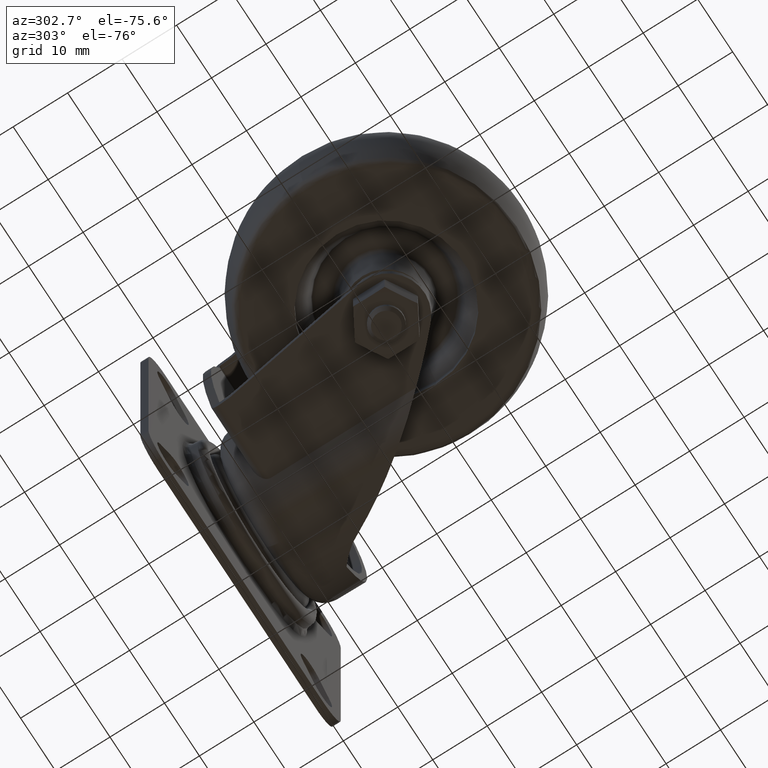
[diagram: clean part render]
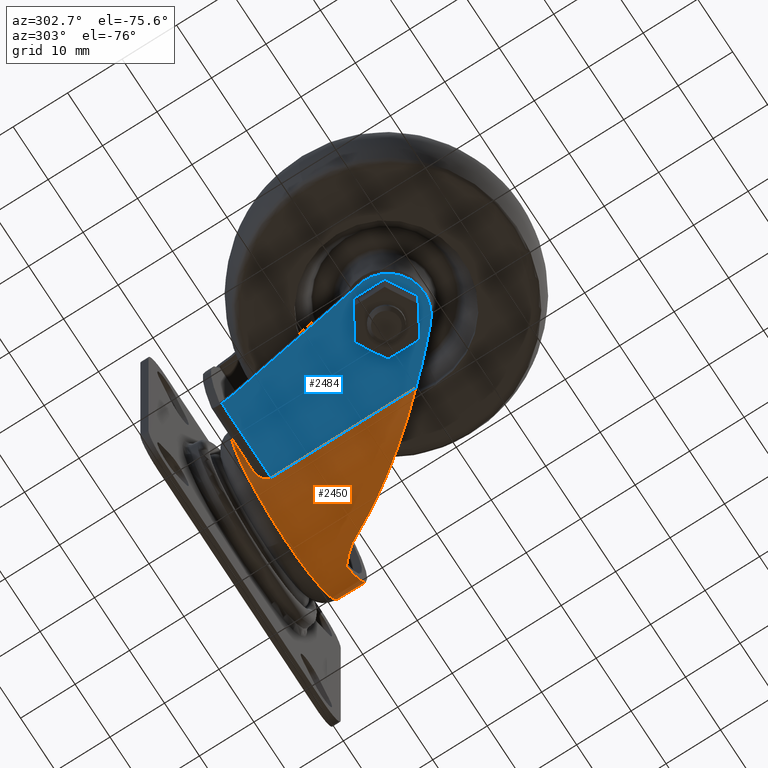
[diagram: same view with the hole feature highlighted: cylindrical wall and planar end face, labeled with their STEP entity ids]
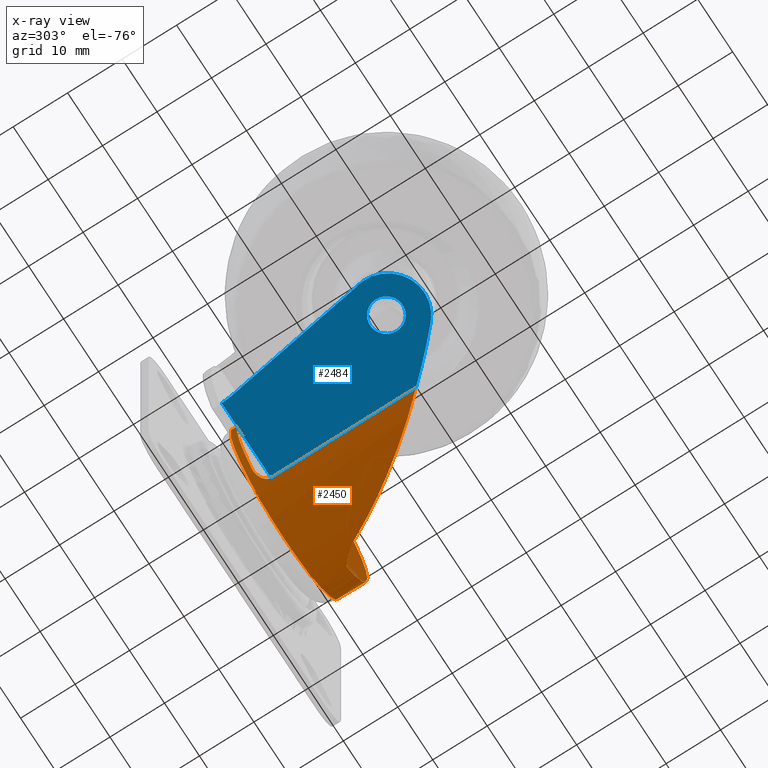
[diagram: x-ray of the same camera — body ghosted, the hole faces saturated]
A machine part, auxiliary view. The highlighted faces form one hole feature of diameter 31 mm: the cylindrical wall (entity #2450, orange) and its adjacent planar end face (entity #2484, blue) — they share a circular edge in the B-rep.
The next image is the same camera in x-ray (body ghosted, the hole faces saturated) — the bore reads through the body.
Wall:
#21=LINE('',#3867,#113);
#22=LINE('',#3901,#114);
#113=VECTOR('',#3032,26.6121173542962);
#114=VECTOR('',#3035,26.6121173542962);
#207=B_SPLINE_CURVE_WITH_KNOTS('',3,(#3840,#3841,#3842,#3843),
 .UNSPECIFIED.,.F.,.F.,(4,4),(0.,0.0047058748648858),.UNSPECIFIED.);
#208=B_SPLINE_CURVE_WITH_KNOTS('',3,(#3848,#3849,#3850,#3851,#3852,#3853,
#3854,#3855,#3856,#3857,#3858,#3859,#3860,#3861,#3862,#3863,#3864,#3865),
 .UNSPECIFIED.,.F.,.F.,(4,2,2,2,2,2,2,2,4),(4.06088354287779E-17,0.00668792817172207,
0.0133758563434441,0.0150478383863746,0.0167198204293051,0.0200637845151661,
0.0234077486010271,0.0250797306439576,0.0267517126868882),.UNSPECIFIED.);
#209=B_SPLINE_CURVE_WITH_KNOTS('',3,(#3869,#3870,#3871,#3872,#3873,#3874,
#3875,#3876,#3877,#3878,#3879,#3880,#3881,#3882),.UNSPECIFIED.,.F.,.F.,
(4,2,2,2,2,2,4),(0.,0.000502001827989007,0.00100400365597801,0.00150600548396702,
0.00200800731195603,0.00301201096793404,0.00401601462391206),
 .UNSPECIFIED.);
#210=B_SPLINE_CURVE_WITH_KNOTS('',3,(#3886,#3887,#3888,#3889,#3890,#3891,
#3892,#3893,#3894,#3895,#3896,#3897,#3898,#3899),.UNSPECIFIED.,.F.,.F.,
(4,2,2,2,2,2,4),(0.,0.000995283445160281,0.00149292516774042,0.00199056689032057,
0.00298585033548085,0.00348349205806099,0.00398113378064114),
 .UNSPECIFIED.);
#211=B_SPLINE_CURVE_WITH_KNOTS('',3,(#3903,#3904,#3905,#3906,#3907,#3908,
#3909,#3910,#3911,#3912,#3913,#3914,#3915,#3916,#3917,#3918),
 .UNSPECIFIED.,.F.,.F.,(4,2,2,2,2,2,2,4),(0.0599339497965216,0.0632746724651554,
0.0649450337994723,0.0666153951337892,0.0732968404710568,0.0766375631396906,
0.0799782858083244,0.086659731145592),.UNSPECIFIED.);
#212=B_SPLINE_CURVE_WITH_KNOTS('',3,(#3919,#3920,#3921,#3922),
 .UNSPECIFIED.,.F.,.F.,(4,4),(0.,0.00470587486488576),.UNSPECIFIED.);
#345=CYLINDRICAL_SURFACE('',#2651,15.5);
#402=FACE_BOUND('',#690,.T.);
#498=FACE_OUTER_BOUND('',#689,.T.);
#689=EDGE_LOOP('',(#1647,#1648,#1649,#1650,#1651,#1652,#1653,#1654,#1655,
#1656));
#690=EDGE_LOOP('',(#1657));
#933=CIRCLE('',#2652,15.5);
#934=CIRCLE('',#2653,15.5);
#935=CIRCLE('',#2654,15.5);
#1088=VERTEX_POINT('',#3836);
#1089=VERTEX_POINT('',#3838);
#1090=VERTEX_POINT('',#3845);
#1091=VERTEX_POINT('',#3847);
#1092=VERTEX_POINT('',#3866);
#1093=VERTEX_POINT('',#3868);
#1094=VERTEX_POINT('',#3883);
#1095=VERTEX_POINT('',#3885);
#1096=VERTEX_POINT('',#3900);
#1097=VERTEX_POINT('',#3902);
#1098=VERTEX_POINT('',#3923);
#1314=EDGE_CURVE('',#1089,#1088,#207,.T.);
#1315=EDGE_CURVE('',#1088,#1090,#933,.T.);
#1316=EDGE_CURVE('',#1089,#1091,#208,.T.);
#1317=EDGE_CURVE('',#1091,#1092,#21,.F.);
#1318=EDGE_CURVE('',#1092,#1093,#209,.T.);
#1319=EDGE_CURVE('',#1093,#1094,#934,.F.);
#1320=EDGE_CURVE('',#1094,#1095,#210,.T.);
#1321=EDGE_CURVE('',#1095,#1096,#22,.T.);
#1322=EDGE_CURVE('',#1096,#1097,#211,.T.);
#1323=EDGE_CURVE('',#1090,#1097,#212,.T.);
#1324=EDGE_CURVE('',#1098,#1098,#935,.T.);
#1647=ORIENTED_EDGE('',*,*,#1315,.F.);
#1648=ORIENTED_EDGE('',*,*,#1314,.F.);
#1649=ORIENTED_EDGE('',*,*,#1316,.T.);
#1650=ORIENTED_EDGE('',*,*,#1317,.T.);
#1651=ORIENTED_EDGE('',*,*,#1318,.T.);
#1652=ORIENTED_EDGE('',*,*,#1319,.T.);
#1653=ORIENTED_EDGE('',*,*,#1320,.T.);
#1654=ORIENTED_EDGE('',*,*,#1321,.T.);
#1655=ORIENTED_EDGE('',*,*,#1322,.T.);
#1656=ORIENTED_EDGE('',*,*,#1323,.F.);
#1657=ORIENTED_EDGE('',*,*,#1324,.T.);
#2450=ADVANCED_FACE('',(#498,#402),#345,.T.);
#2651=AXIS2_PLACEMENT_3D('',#3844,#3028,#3029);
#2652=AXIS2_PLACEMENT_3D('',#3846,#3030,#3031);
#2653=AXIS2_PLACEMENT_3D('',#3884,#3033,#3034);
#2654=AXIS2_PLACEMENT_3D('',#3924,#3036,#3037);
#3028=DIRECTION('center_axis',(0.,1.,0.));
#3029=DIRECTION('ref_axis',(0.,0.,-1.));
#3030=DIRECTION('center_axis',(0.,-1.,0.));
#3031=DIRECTION('ref_axis',(0.,0.,-1.));
#3032=DIRECTION('',(0.,-1.,0.));
#3033=DIRECTION('center_axis',(0.,-1.,0.));
#3034=DIRECTION('ref_axis',(0.,0.,-1.));
#3035=DIRECTION('',(0.,-1.,0.));
#3036=DIRECTION('center_axis',(0.,-1.,0.));
#3037=DIRECTION('ref_axis',(0.,0.,-1.));
#3836=CARTESIAN_POINT('',(30.56,26.93,-12.2006721126338));
#3838=CARTESIAN_POINT('',(27.5044218475587,23.8775764355235,-14.0692038306722));
#3840=CARTESIAN_POINT('Ctrl Pts',(27.5044218475587,23.8775764355235,-14.0692038306722));
#3841=CARTESIAN_POINT('Ctrl Pts',(28.4421015802834,25.0918843042083,-13.6356992334717));
#3842=CARTESIAN_POINT('Ctrl Pts',(29.4857782495898,26.1022635791365,-13.0423929489218));
#3843=CARTESIAN_POINT('Ctrl Pts',(30.56,26.93,-12.2006721126338));
#3844=CARTESIAN_POINT('Origin',(21.,-7.88,0.));
#3845=CARTESIAN_POINT('',(30.56,26.93,12.2006721126338));
#3846=CARTESIAN_POINT('Origin',(21.,26.93,0.));
#3847=CARTESIAN_POINT('',(12.1859487180979,2.38788264570382,-12.75));
#3848=CARTESIAN_POINT('Ctrl Pts',(27.5044218475587,23.8775764355235,-14.0692038306722));
#3849=CARTESIAN_POINT('Ctrl Pts',(26.4463167884258,21.947040104299,-14.5583830156828));
#3850=CARTESIAN_POINT('Ctrl Pts',(25.3289463616979,20.0430564579234,-14.9317955011972));
#3851=CARTESIAN_POINT('Ctrl Pts',(22.9722924717508,16.2877741856345,-15.4210361486479));
#3852=CARTESIAN_POINT('Ctrl Pts',(21.7330754819465,14.4364993616966,-15.5375324018506));
#3853=CARTESIAN_POINT('Ctrl Pts',(20.1032727257452,12.1538317071486,-15.4774763687643));
#3854=CARTESIAN_POINT('Ctrl Pts',(19.7732596928651,11.6988628868151,-15.4550287002377));
#3855=CARTESIAN_POINT('Ctrl Pts',(19.1049485312746,10.7919835873236,-15.3873839179115));
#3856=CARTESIAN_POINT('Ctrl Pts',(18.7664229139934,10.3398102906236,-15.3420914893297));
#3857=CARTESIAN_POINT('Ctrl Pts',(17.747446596739,8.99982037847617,-15.1705454029617));
#3858=CARTESIAN_POINT('Ctrl Pts',(17.0607312277525,8.12460607723789,-15.0086215029268));
#3859=CARTESIAN_POINT('Ctrl Pts',(15.6757564244728,6.4115372112805,-14.5749438498603));
#3860=CARTESIAN_POINT('Ctrl Pts',(14.9774705306604,5.57366275489884,-14.3033515165273));
#3861=CARTESIAN_POINT('Ctrl Pts',(13.9247571282997,4.34652301432564,-13.7964712792821));
#3862=CARTESIAN_POINT('Ctrl Pts',(13.572076104086,3.94142950599372,-13.6102415273224));
#3863=CARTESIAN_POINT('Ctrl Pts',(12.8741841570744,3.15104741622148,-13.2054475396481));
#3864=CARTESIAN_POINT('Ctrl Pts',(12.5282112511824,2.76484177852378,-12.9866054524299));
#3865=CARTESIAN_POINT('Ctrl Pts',(12.1859487180979,2.38788264570383,-12.75));
#3866=CARTESIAN_POINT('',(12.1859487180979,29.,-12.75));
#3867=CARTESIAN_POINT('',(12.1859487180979,-7.88,-12.75));
#3868=CARTESIAN_POINT('',(9.83364428293636,31.,-10.75));
#3869=CARTESIAN_POINT('Ctrl Pts',(12.1859487180979,29.,-12.75));
#3870=CARTESIAN_POINT('Ctrl Pts',(12.1859487180979,29.1699515577834,-12.75));
#3871=CARTESIAN_POINT('Ctrl Pts',(12.1538960299611,29.3359188665561,-12.7279622104691));
#3872=CARTESIAN_POINT('Ctrl Pts',(12.0431208169783,29.6435959572648,-12.6502526765524));
#3873=CARTESIAN_POINT('Ctrl Pts',(11.9657261144416,29.7840851053939,-12.595397482303));
#3874=CARTESIAN_POINT('Ctrl Pts',(11.7875621548913,30.0376559461741,-12.4656781334389));
#3875=CARTESIAN_POINT('Ctrl Pts',(11.6882183436785,30.1493647343359,-12.3918721202516));
#3876=CARTESIAN_POINT('Ctrl Pts',(11.4764512595405,30.3515766687194,-12.2298729203441));
#3877=CARTESIAN_POINT('Ctrl Pts',(11.3638032672427,30.4417136092345,-12.1414665615398));
#3878=CARTESIAN_POINT('Ctrl Pts',(11.0218667951057,30.6781386943396,-11.8647734363094));
#3879=CARTESIAN_POINT('Ctrl Pts',(10.7833608348028,30.795802086166,-11.6608699491716));
#3880=CARTESIAN_POINT('Ctrl Pts',(10.3035981738377,30.9573996896213,-11.2224147034677));
#3881=CARTESIAN_POINT('Ctrl Pts',(10.0668809029197,31.,-10.9922700525562));
#3882=CARTESIAN_POINT('Ctrl Pts',(9.83364428293636,31.,-10.75));
#3883=CARTESIAN_POINT('',(9.83364428293636,31.,10.75));
#3884=CARTESIAN_POINT('Origin',(21.,31.,0.));
#3885=CARTESIAN_POINT('',(12.1859487180979,29.,12.75));
#3886=CARTESIAN_POINT('Ctrl Pts',(9.83364428293636,31.,10.75));
#3887=CARTESIAN_POINT('Ctrl Pts',(10.0670981579395,31.,10.992495722029));
#3888=CARTESIAN_POINT('Ctrl Pts',(10.3031868671062,30.9573411114469,11.2219679655797));
#3889=CARTESIAN_POINT('Ctrl Pts',(10.6608586693061,30.8371616921771,11.5489501946746));
#3890=CARTESIAN_POINT('Ctrl Pts',(10.7814483939845,30.7870640767585,11.6557135006249));
#3891=CARTESIAN_POINT('Ctrl Pts',(11.0186914543751,30.6682046030252,11.8595081622505));
#3892=CARTESIAN_POINT('Ctrl Pts',(11.1352798887481,30.5996729353693,11.9565360630673));
#3893=CARTESIAN_POINT('Ctrl Pts',(11.4768806681891,30.3636252064515,12.2329893401064));
#3894=CARTESIAN_POINT('Ctrl Pts',(11.6984508244803,30.1644840061294,12.4007971303243));
#3895=CARTESIAN_POINT('Ctrl Pts',(11.9657436308659,29.7840597420161,12.5954102152243));
#3896=CARTESIAN_POINT('Ctrl Pts',(12.0431892986267,29.6434376763244,12.6503009472539));
#3897=CARTESIAN_POINT('Ctrl Pts',(12.1538983574661,29.335880455328,12.7279636127029));
#3898=CARTESIAN_POINT('Ctrl Pts',(12.1859487180979,29.1698822758641,12.75));
#3899=CARTESIAN_POINT('Ctrl Pts',(12.1859487180979,29.,12.75));
#3900=CARTESIAN_POINT('',(12.1859487180979,2.38788264570381,12.75));
#3901=CARTESIAN_POINT('',(12.1859487180979,-7.88,12.75));
#3902=CARTESIAN_POINT('',(27.5044218475587,23.8775764355235,14.0692038306722));
#3903=CARTESIAN_POINT('Ctrl Pts',(12.1859487180979,2.38788264570381,12.75));
#3904=CARTESIAN_POINT('Ctrl Pts',(12.870405252852,3.14172543260949,13.22316352922));
#3905=CARTESIAN_POINT('Ctrl Pts',(13.5633110050097,3.92554805777658,13.6214511921079));
#3906=CARTESIAN_POINT('Ctrl Pts',(14.6080967470082,5.1429127295013,14.1259740107077));
#3907=CARTESIAN_POINT('Ctrl Pts',(14.9572956703493,5.5556662202112,14.2785527855587));
#3908=CARTESIAN_POINT('Ctrl Pts',(15.6566591802236,6.39479780072665,14.5547261791239));
#3909=CARTESIAN_POINT('Ctrl Pts',(16.0077973777525,6.8223947582424,14.6785895099852));
#3910=CARTESIAN_POINT('Ctrl Pts',(17.7479850904003,8.97405040679361,15.2250987325308));
#3911=CARTESIAN_POINT('Ctrl Pts',(19.0947230164851,10.7434625142446,15.4372006637877));
#3912=CARTESIAN_POINT('Ctrl Pts',(21.0416365127916,13.4670377180818,15.5135449714207));
#3913=CARTESIAN_POINT('Ctrl Pts',(21.6784392586159,14.3865083700952,15.4978150637609));
#3914=CARTESIAN_POINT('Ctrl Pts',(22.9270841120474,16.2485639991745,15.3924948726079));
#3915=CARTESIAN_POINT('Ctrl Pts',(23.5401627603276,17.1932210884067,15.3025017396731));
#3916=CARTESIAN_POINT('Ctrl Pts',(25.3248255278086,20.0353983414966,14.9339154115935));
#3917=CARTESIAN_POINT('Ctrl Pts',(26.4465926510427,21.9475434218097,14.5582554799067));
#3918=CARTESIAN_POINT('Ctrl Pts',(27.5044218475587,23.8775764355236,14.0692038306724));
#3919=CARTESIAN_POINT('Ctrl Pts',(30.56,26.93,12.2006721126338));
#3920=CARTESIAN_POINT('Ctrl Pts',(29.4857782495898,26.1022635791365,13.0423929489218));
#3921=CARTESIAN_POINT('Ctrl Pts',(28.4421015802834,25.0918843042083,13.6356992334717));
#3922=CARTESIAN_POINT('Ctrl Pts',(27.5044218475587,23.8775764355235,14.0692038306722));
#3923=CARTESIAN_POINT('',(21.,32.162,-15.5));
#3924=CARTESIAN_POINT('Origin',(21.,32.162,0.));
End face:
#21=LINE('',#3867,#113);
#28=LINE('',#3948,#120);
#37=LINE('',#3974,#129);
#90=LINE('',#4136,#182);
#113=VECTOR('',#3032,26.6121173542962);
#120=VECTOR('',#3061,1.63417575605801);
#129=VECTOR('',#3084,27.5939589448488);
#182=VECTOR('',#3249,14.1191994068032);
#404=FACE_BOUND('',#726,.T.);
#532=FACE_OUTER_BOUND('',#725,.T.);
#725=EDGE_LOOP('',(#1796,#1797,#1798,#1799,#1800,#1801));
#726=EDGE_LOOP('',(#1802));
#940=CIRCLE('',#2673,6.67);
#967=CIRCLE('',#2726,112.17);
#968=CIRCLE('',#2727,3.);
#1091=VERTEX_POINT('',#3847);
#1092=VERTEX_POINT('',#3866);
#1106=VERTEX_POINT('',#3945);
#1107=VERTEX_POINT('',#3947);
#1117=VERTEX_POINT('',#3973);
#1120=VERTEX_POINT('',#3981);
#1171=VERTEX_POINT('',#4137);
#1317=EDGE_CURVE('',#1091,#1092,#21,.F.);
#1335=EDGE_CURVE('',#1106,#1107,#28,.T.);
#1348=EDGE_CURVE('',#1107,#1117,#37,.T.);
#1352=EDGE_CURVE('',#1120,#1117,#940,.F.);
#1429=EDGE_CURVE('',#1091,#1120,#967,.F.);
#1430=EDGE_CURVE('',#1092,#1106,#90,.T.);
#1431=EDGE_CURVE('',#1171,#1171,#968,.T.);
#1796=ORIENTED_EDGE('',*,*,#1317,.F.);
#1797=ORIENTED_EDGE('',*,*,#1429,.T.);
#1798=ORIENTED_EDGE('',*,*,#1352,.T.);
#1799=ORIENTED_EDGE('',*,*,#1348,.F.);
#1800=ORIENTED_EDGE('',*,*,#1335,.F.);
#1801=ORIENTED_EDGE('',*,*,#1430,.F.);
#1802=ORIENTED_EDGE('',*,*,#1431,.T.);
#2218=PLANE('',#2725);
#2484=ADVANCED_FACE('',(#532,#404),#2218,.F.);
#2673=AXIS2_PLACEMENT_3D('',#3982,#3091,#3092);
#2725=AXIS2_PLACEMENT_3D('',#4134,#3245,#3246);
#2726=AXIS2_PLACEMENT_3D('',#4135,#3247,#3248);
#2727=AXIS2_PLACEMENT_3D('',#4138,#3250,#3251);
#3032=DIRECTION('',(0.,-1.,0.));
#3061=DIRECTION('',(-0.0714423224441843,-0.997444732586113,0.));
#3084=DIRECTION('',(-0.161991978350553,-0.986792074831407,0.));
#3091=DIRECTION('center_axis',(0.,0.,1.));
#3092=DIRECTION('ref_axis',(1.,0.,0.));
#3245=DIRECTION('center_axis',(0.,0.,1.));
#3246=DIRECTION('ref_axis',(1.,0.,0.));
#3247=DIRECTION('center_axis',(0.,0.,1.));
#3248=DIRECTION('ref_axis',(1.,0.,0.));
#3249=DIRECTION('',(-1.,0.,0.));
#3250=DIRECTION('center_axis',(0.,0.,1.));
#3251=DIRECTION('ref_axis',(1.,0.,0.));
#3847=CARTESIAN_POINT('',(12.1859487180979,2.38788264570382,-12.75));
#3866=CARTESIAN_POINT('',(12.1859487180979,29.,-12.75));
#3867=CARTESIAN_POINT('',(12.1859487180979,-7.88,-12.75));
#3945=CARTESIAN_POINT('',(-1.93325068870524,29.,-12.75));
#3947=CARTESIAN_POINT('',(-2.05,27.37,-12.75));
#3948=CARTESIAN_POINT('',(-4.57746619351429,-7.91731647098796,-12.75));
#3973=CARTESIAN_POINT('',(-6.52,0.140500000000001,-12.75));
#3974=CARTESIAN_POINT('',(-7.32697500591653,-4.77527761154458,-12.75));
#3981=CARTESIAN_POINT('',(4.72797619207034,-5.08681675346255,-12.75));
#3982=CARTESIAN_POINT('Origin',(0.138759409224045,-0.246569929173325,-12.75));
#4134=CARTESIAN_POINT('Origin',(24.5,-10.,-12.75));
#4135=CARTESIAN_POINT('Origin',(-70.86,77.7899999999999,-12.75));
#4136=CARTESIAN_POINT('',(24.5,29.,-12.75));
#4137=CARTESIAN_POINT('',(3.,0.,-12.75));
#4138=CARTESIAN_POINT('Origin',(0.,0.,-12.75));